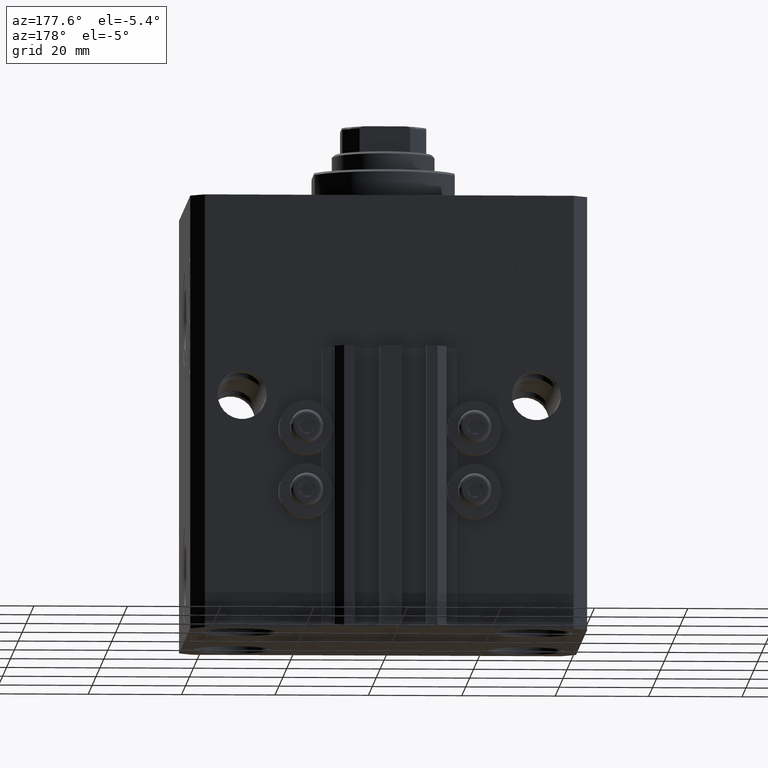
[diagram: clean part render]
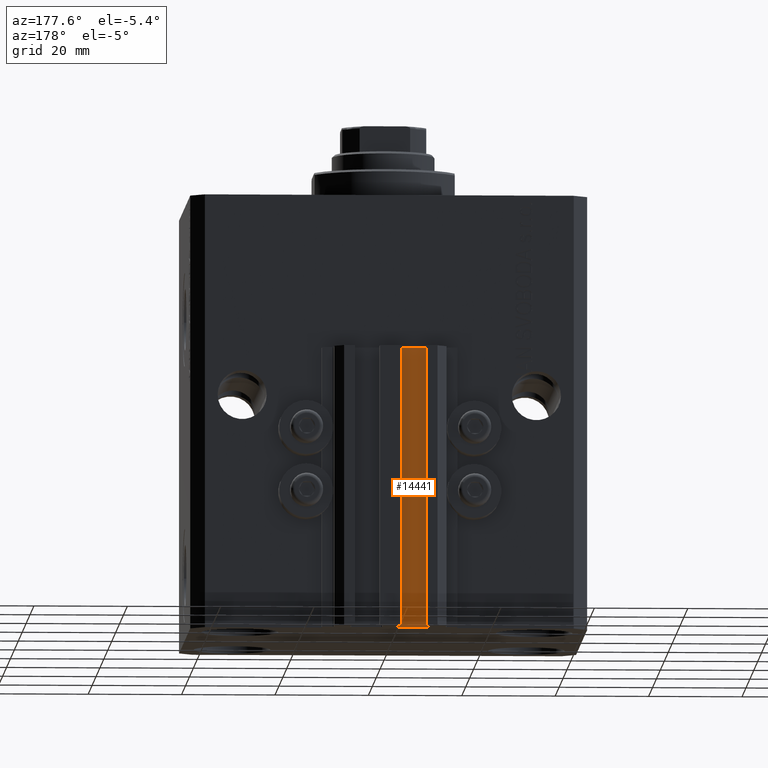
[diagram: same view with one face highlighted and labeled with its STEP entity id]
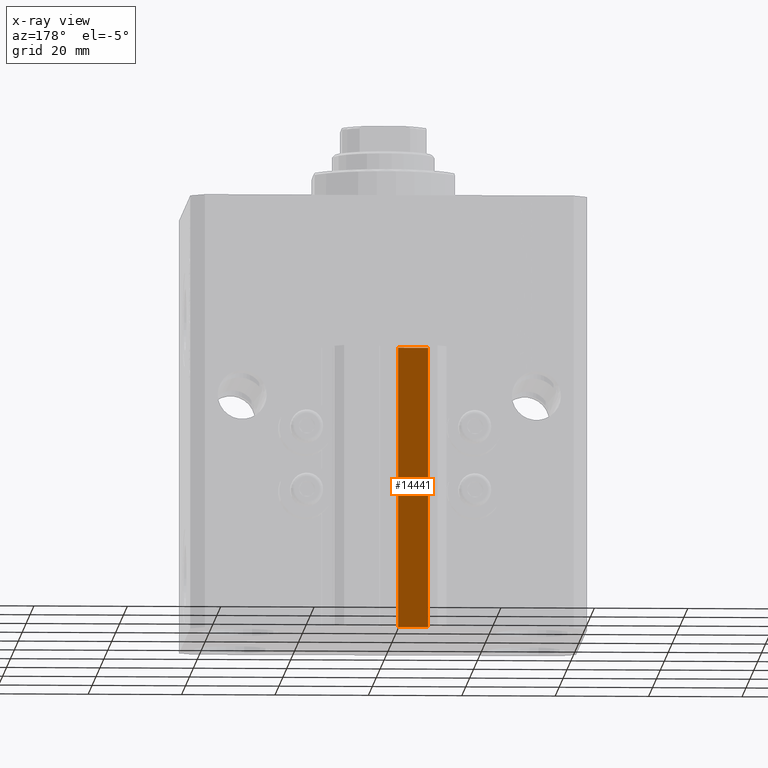
[diagram: x-ray of the same camera — body ghosted, the highlighted face saturated]
A machine part, auxiliary view. The second image highlights one B-rep face of the part: STEP entity #14441.
The next image is the same camera in x-ray: the body ghosted, the highlighted face saturated — about 0% of this face is hidden behind the body in this view.
In plain terms, the highlighted planar face has unit normal (0, 1, 0).
Its self-contained STEP definition (entity closure, byte-faithful):
#514 = VECTOR ( 'NONE', #42386, 1000.000000000000000 ) ;
#2626 = VERTEX_POINT ( 'NONE', #12421 ) ;
#3158 = VERTEX_POINT ( 'NONE', #37318 ) ;
#4232 = DIRECTION ( 'NONE',  ( -1.000000000000000000, 0.000000000000000000, 0.000000000000000000 ) ) ;
#4703 = VECTOR ( 'NONE', #13250, 1000.000000000000000 ) ;
#5597 = VECTOR ( 'NONE', #10583, 1000.000000000000000 ) ;
#9202 = FACE_OUTER_BOUND ( 'NONE', #20982, .T. ) ;
#9365 = ORIENTED_EDGE ( 'NONE', *, *, #27360, .T. ) ;
#10583 = DIRECTION ( 'NONE',  ( -1.000000000000000000, 0.000000000000000000, 0.000000000000000000 ) ) ;
#11034 = LINE ( 'NONE', #37555, #47162 ) ;
#11485 = EDGE_CURVE ( 'NONE', #3158, #37432, #31749, .T. ) ;
#12355 = CARTESIAN_POINT ( 'NONE',  ( -1.800000000000000933, 33.50000000000000000, -93.00000000000000000 ) ) ;
#12421 = CARTESIAN_POINT ( 'NONE',  ( -1.800000000000000933, 33.50000000000000000, -33.00000000000000000 ) ) ;
#13250 = DIRECTION ( 'NONE',  ( 0.000000000000000000, 0.000000000000000000, 1.000000000000000000 ) ) ;
#14441 = ADVANCED_FACE ( 'NONE', ( #9202 ), #38879, .T. ) ;
#15067 = CARTESIAN_POINT ( 'NONE',  ( -8.199999999999997513, 33.50000000000000000, -33.00000000000000000 ) ) ;
#15943 = ORIENTED_EDGE ( 'NONE', *, *, #11485, .T. ) ;
#16734 = DIRECTION ( 'NONE',  ( 0.000000000000000000, 1.000000000000000000, -0.000000000000000000 ) ) ;
#17656 = LINE ( 'NONE', #18124, #5597 ) ;
#18124 = CARTESIAN_POINT ( 'NONE',  ( -1.800000000000000933, 33.50000000000000000, -33.00000000000000000 ) ) ;
#20242 = LINE ( 'NONE', #23410, #514 ) ;
#20982 = EDGE_LOOP ( 'NONE', ( #46942, #34756, #9365, #15943 ) ) ;
#22958 = EDGE_CURVE ( 'NONE', #35154, #2626, #20242, .T. ) ;
#23410 = CARTESIAN_POINT ( 'NONE',  ( -1.800000000000000933, 33.50000000000000000, -93.00000000000000000 ) ) ;
#24050 = CARTESIAN_POINT ( 'NONE',  ( -1.800000000000000933, 33.50000000000000000, -93.00000000000000000 ) ) ;
#27360 = EDGE_CURVE ( 'NONE', #35154, #3158, #11034, .T. ) ;
#27456 = AXIS2_PLACEMENT_3D ( 'NONE', #24050, #16734, #39599 ) ;
#31749 = LINE ( 'NONE', #46581, #4703 ) ;
#34756 = ORIENTED_EDGE ( 'NONE', *, *, #22958, .F. ) ;
#35154 = VERTEX_POINT ( 'NONE', #12355 ) ;
#37318 = CARTESIAN_POINT ( 'NONE',  ( -8.199999999999997513, 33.50000000000000000, -93.00000000000000000 ) ) ;
#37432 = VERTEX_POINT ( 'NONE', #15067 ) ;
#37555 = CARTESIAN_POINT ( 'NONE',  ( -1.800000000000000933, 33.50000000000000000, -93.00000000000000000 ) ) ;
#38785 = EDGE_CURVE ( 'NONE', #2626, #37432, #17656, .T. ) ;
#38879 = PLANE ( 'NONE',  #27456 ) ;
#39599 = DIRECTION ( 'NONE',  ( 0.000000000000000000, 0.000000000000000000, 1.000000000000000000 ) ) ;
#42386 = DIRECTION ( 'NONE',  ( 0.000000000000000000, 0.000000000000000000, 1.000000000000000000 ) ) ;
#46581 = CARTESIAN_POINT ( 'NONE',  ( -8.199999999999997513, 33.50000000000000000, -93.00000000000000000 ) ) ;
#46942 = ORIENTED_EDGE ( 'NONE', *, *, #38785, .F. ) ;
#47162 = VECTOR ( 'NONE', #4232, 1000.000000000000000 ) ;